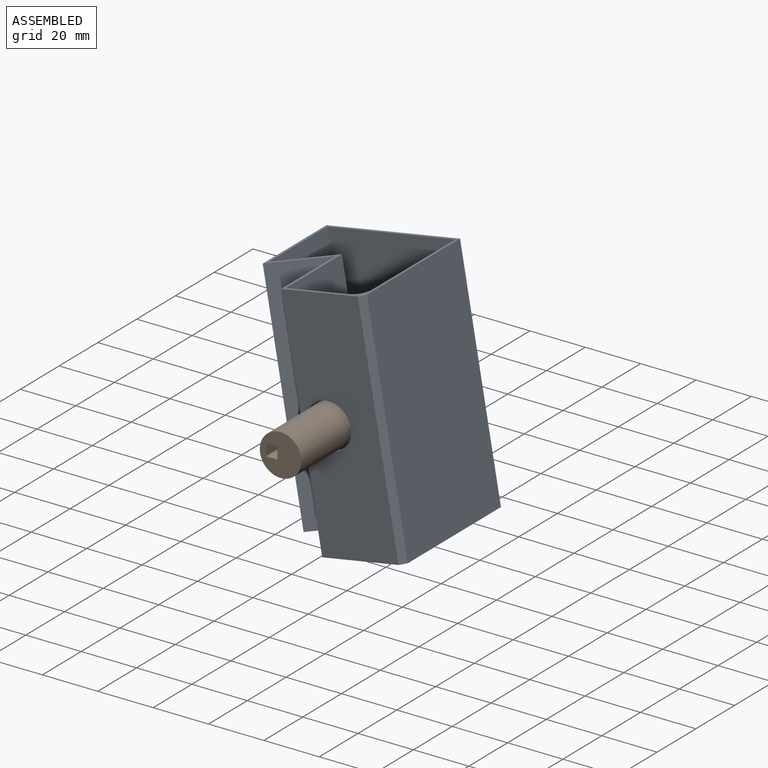
[diagram: assembled view]
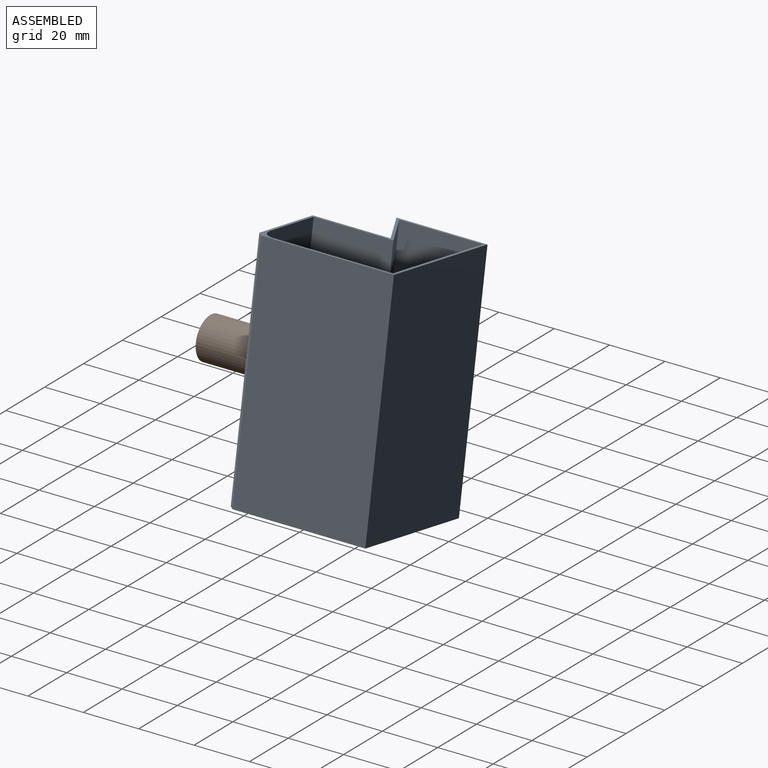
[diagram: assembled view, second angle]
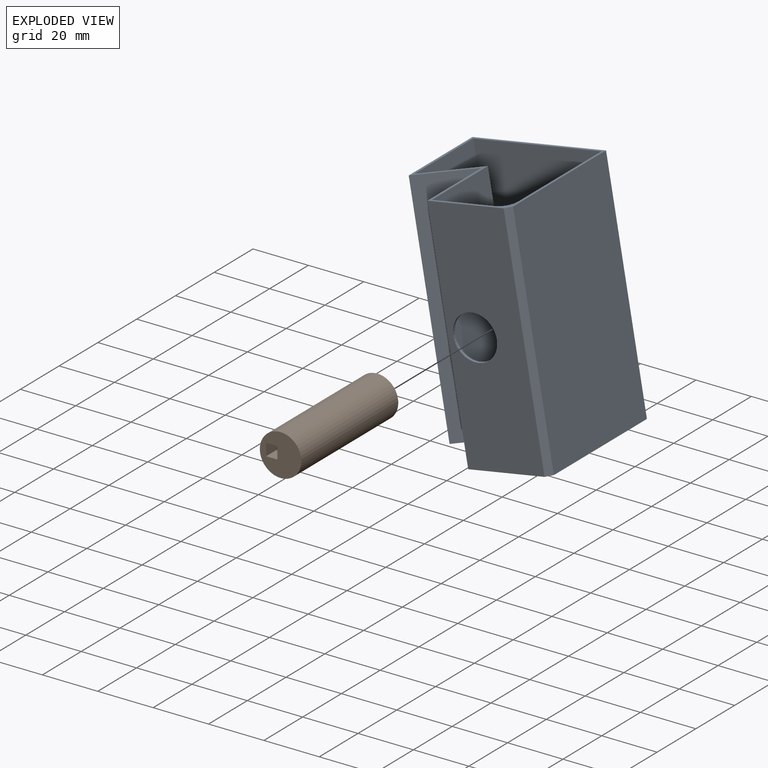
[diagram: exploded view]
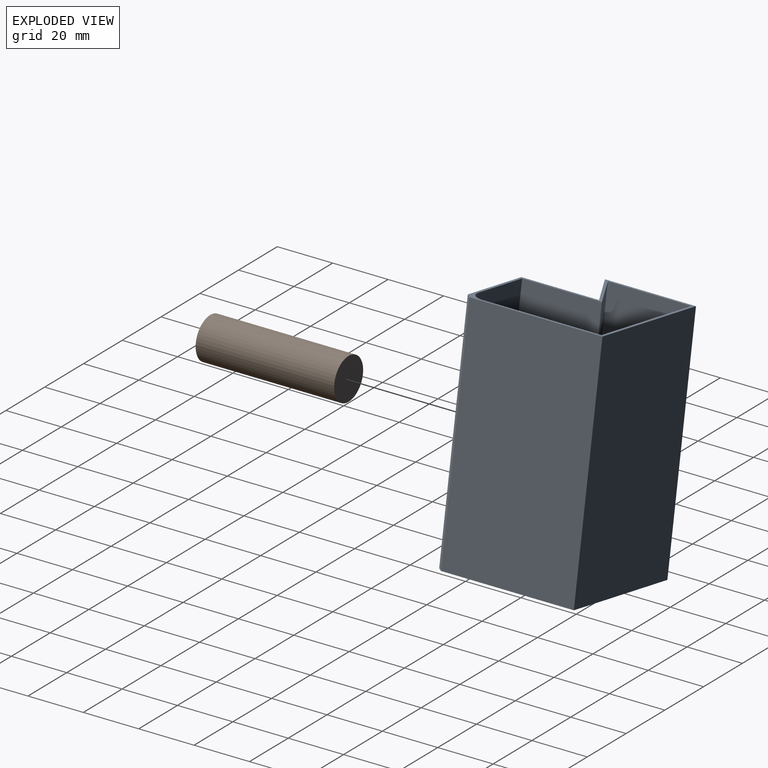
[diagram: exploded view, second angle]
ASSEMBLY  parts=2 mates=2
PART A: 18 faces, bbox 49x85x50 mm
  f0: plane 50x49mm, normal (0,-1,0), area 211.3mm2, adj f1,f2,f3,f4,f5,f6,f8,f9
  f1: plane 85x48mm, normal (-1,0,0), area 4080mm2, adj f0,f2,f7,f17
  f2: plane 85x49mm, normal (0,0,-1), area 4165mm2, adj f0,f1,f3,f7
  f3: plane 85x32.88mm, normal (1,0,0), area 2795.2mm2, adj f0,f2,f4,f7
  f4: plane 85x19mm, normal (-0.5,0,0.87), area 1864.8mm2, adj f0,f3,f5,f7
  f5: plane 85x28.09mm, normal (1,0,0), area 2387.2mm2, adj f0,f4,f6,f7
  f6: plane 85x28mm, normal (0,0,1), area 2178.9mm2, adj f0,f5,f7,f15,f17
  f7: plane 50x49mm, normal (0,1,0), area 2018.6mm2, adj f1,f2,f3,f4,f5,f6,f17
  f8: plane 84x43mm, normal (1,0,0), area 3612mm2, adj f0,f9,f14,f16
  f9: plane 84x47mm, normal (0,0,1), area 3948mm2, adj f0,f8,f10,f14
  f10: plane 84x30.15mm, normal (-1,0,0), area 2532.8mm2, adj f0,f9,f11,f14
  f11: plane 84x19mm, normal (0.5,0,-0.87), area 1842.9mm2, adj f0,f10,f12,f14
  f12: plane 84x28.82mm, normal (-1,0,0), area 2420.6mm2, adj f0,f11,f13,f14
  f13: plane 84x23mm, normal (0,0,-1), area 1730.9mm2, adj f0,f12,f14,f15,f16
  f14: plane 48x47mm, normal (0,-1,0), area 1807.3mm2, adj f8,f9,f10,f11,f12,f13,f16
  f15: cylinder r=8mm len=16mm, axis (0,0,1), area 50.3mm2, adj f6,f13
  f16: cylinder r=5mm len=84mm, axis (0,-1,0), area 659.7mm2, adj f0,f8,f13,f14
  f17: plane 85x2mm, normal (-0.71,0,0.71), area 240.4mm2, adj f0,f1,f6,f7
PART B: 8 faces, bbox 15x50x15 mm
  f0: plane 15x15mm, normal (0,-1,0), area 158.6mm2, adj f1,f3,f4,f5,f6
  f1: cylinder r=7.5mm len=50mm, axis (0,1,0), area 2356.2mm2, adj f0,f2
  f2: plane 15x15mm, normal (0,1,0), area 176.7mm2, adj f1
  f3: plane 25x4.09mm, normal (0,0,-1), area 102.3mm2, adj f0,f4,f6,f7
  f4: plane 25x4.42mm, normal (1,0,0), area 110.6mm2, adj f0,f3,f5,f7
  f5: plane 25x4.09mm, normal (0,0,1), area 102.3mm2, adj f0,f4,f6,f7
  f6: plane 25x4.42mm, normal (-1,0,0), area 110.6mm2, adj f0,f3,f5,f7
  f7: plane 4.42x4.09mm, normal (0,-1,0), area 18.1mm2, adj f3,f4,f5,f6
PLACE A rot(axis=(0.06,0.71,-0.71),172.9deg) t=(-54.79,-4.46,73.08)mm
PLACE B t=(-50.36,-54.46,73.86)mm
MATE cylindrical B.f1 <-> A.f15  axis (0,1,0) through (-50.36,-54.46,73.86)mm
MATE revolute B.f1 <-> A.f15  axis (0,1,0) through (-50.36,-54.46,73.86)mm
